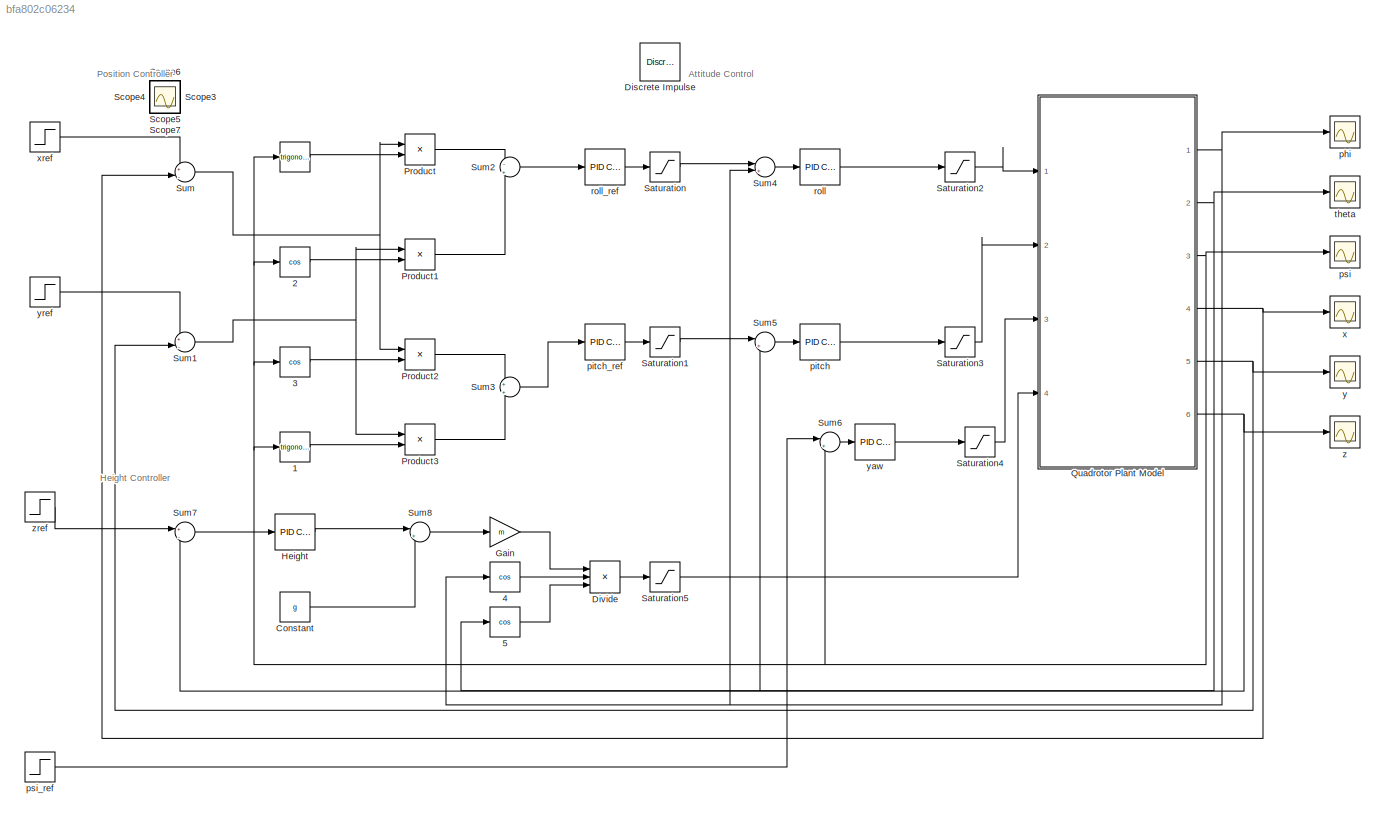
MODEL slx_bfa802c06234
KIND model
CONFIG AbsTol = auto
CONFIG EnableMultiTasking = off
CONFIG FixedStep = auto
CONFIG MaxStep = auto
CONFIG MinStep = auto
CONFIG RelTol = 1e-3
CONFIG SampleTimeConstraint = Unconstrained
CONFIG Solver = VariableStepAuto
CONFIG SolverName = VariableStepAuto
CONFIG StartTime = 0.0
CONFIG StopTime = 20
WORKSPACE source: mxarray member
WORKSPACE g = 1
BLOCK [Trigonometry]  
  NameLocation = right
  Ports = [1, 1]
BLOCK [Trigonometry]  1
  NameLocation = right
  Ports = [1, 1]
BLOCK [Trigonometry]  2
  NameLocation = right
  Operator = cos
  Ports = [1, 1]
BLOCK [Trigonometry]  3
  NameLocation = right
  Operator = cos
  Ports = [1, 1]
BLOCK [Trigonometry]  4
  NameLocation = right
  Operator = cos
  Ports = [1, 1]
BLOCK [Trigonometry]  5
  NameLocation = right
  Operator = cos
  Ports = [1, 1]
BLOCK [Constant] Constant
  Value = g
BLOCK [Reference] Discrete Impulse  REF=dspsrcs4/Discrete 
Impulse
  Ports = [0, 1]
  SourceBlock = dspsrcs4/Discrete \nImpulse
  SourceProductBaseCode = DS
  SourceType = Discrete Impulse
BLOCK [Product] Divide
  Inputs = *//
  Ports = [3, 1]
BLOCK [Gain] Gain
  Gain = m
BLOCK [Reference] Height  REF=simulink/Continuous/PID Controller
  Ports = [1, 1]
  SourceBlock = simulink/Continuous/PID Controller
  SourceProductBaseCode = SL
  SourceType = PID 1dof
BLOCK [Product] Product
  Ports = [2, 1]
BLOCK [Product] Product1
  Ports = [2, 1]
BLOCK [Product] Product2
  Ports = [2, 1]
BLOCK [Product] Product3
  Ports = [2, 1]
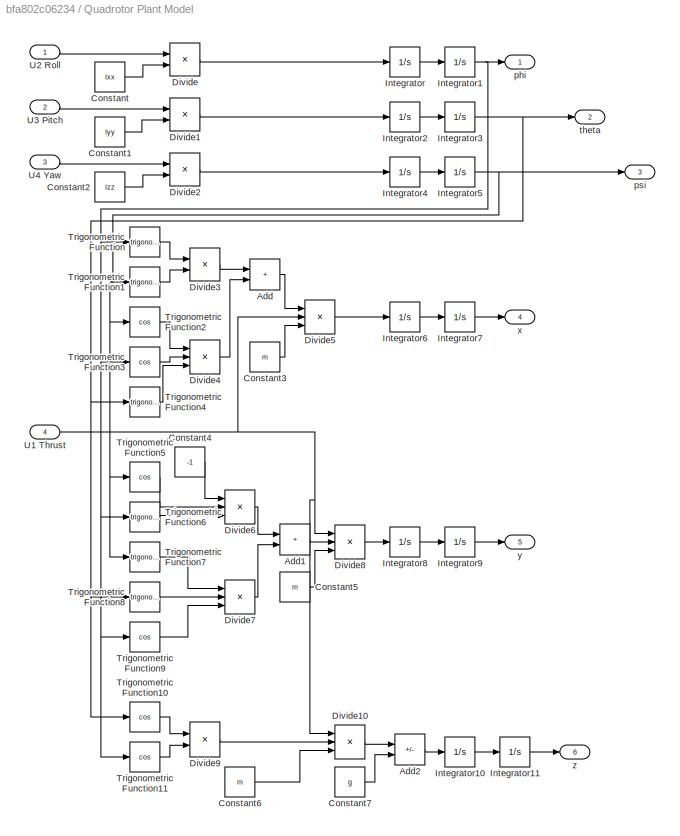
BLOCK [SubSystem] Quadrotor Plant Model
  Ports = [4, 6]
  RequestExecContextInheritance = off
BLOCK [Sum] Quadrotor Plant Model/Add
  IconShape = rectangular
  Ports = [2, 1]
BLOCK [Sum] Quadrotor Plant Model/Add1
  IconShape = rectangular
  Ports = [2, 1]
BLOCK [Sum] Quadrotor Plant Model/Add2
  IconShape = rectangular
  Inputs = +-
  Ports = [2, 1]
BLOCK [Constant] Quadrotor Plant Model/Constant
  Value = Ixx
BLOCK [Constant] Quadrotor Plant Model/Constant1
  Value = Iyy
BLOCK [Constant] Quadrotor Plant Model/Constant2
  Value = Izz
BLOCK [Constant] Quadrotor Plant Model/Constant3
  Value = m
BLOCK [Constant] Quadrotor Plant Model/Constant4
  Value = -1
BLOCK [Constant] Quadrotor Plant Model/Constant5
  Value = m
BLOCK [Constant] Quadrotor Plant Model/Constant6
  Value = m
BLOCK [Constant] Quadrotor Plant Model/Constant7
  Value = g
BLOCK [Product] Quadrotor Plant Model/Divide
  Inputs = */
  Ports = [2, 1]
BLOCK [Product] Quadrotor Plant Model/Divide1
  Inputs = */
  Ports = [2, 1]
BLOCK [Product] Quadrotor Plant Model/Divide10
  Inputs = **/
  Ports = [3, 1]
BLOCK [Product] Quadrotor Plant Model/Divide2
  Inputs = */
  Ports = [2, 1]
BLOCK [Product] Quadrotor Plant Model/Divide3
  Inputs = **
  Ports = [2, 1]
BLOCK [Product] Quadrotor Plant Model/Divide4
  Inputs = ***
  Ports = [3, 1]
BLOCK [Product] Quadrotor Plant Model/Divide5
  Inputs = **/
  Ports = [3, 1]
BLOCK [Product] Quadrotor Plant Model/Divide6
  Inputs = ***
  Ports = [3, 1]
BLOCK [Product] Quadrotor Plant Model/Divide7
  Inputs = ***
  Ports = [3, 1]
BLOCK [Product] Quadrotor Plant Model/Divide8
  Inputs = **/
  Ports = [3, 1]
BLOCK [Product] Quadrotor Plant Model/Divide9
  Inputs = **
  Ports = [2, 1]
BLOCK [Integrator] Quadrotor Plant Model/Integrator
  Ports = [1, 1]
BLOCK [Integrator] Quadrotor Plant Model/Integrator1
  Ports = [1, 1]
BLOCK [Integrator] Quadrotor Plant Model/Integrator10
  Ports = [1, 1]
BLOCK [Integrator] Quadrotor Plant Model/Integrator11
  Ports = [1, 1]
BLOCK [Integrator] Quadrotor Plant Model/Integrator2
  Ports = [1, 1]
BLOCK [Integrator] Quadrotor Plant Model/Integrator3
  Ports = [1, 1]
BLOCK [Integrator] Quadrotor Plant Model/Integrator4
  Ports = [1, 1]
BLOCK [Integrator] Quadrotor Plant Model/Integrator5
  Ports = [1, 1]
BLOCK [Integrator] Quadrotor Plant Model/Integrator6
  Ports = [1, 1]
BLOCK [Integrator] Quadrotor Plant Model/Integrator7
  Ports = [1, 1]
BLOCK [Integrator] Quadrotor Plant Model/Integrator8
  Ports = [1, 1]
BLOCK [Integrator] Quadrotor Plant Model/Integrator9
  Ports = [1, 1]
BLOCK [Trigonometry] Quadrotor Plant Model/Trigonometric Function
  Ports = [1, 1]
BLOCK [Trigonometry] Quadrotor Plant Model/Trigonometric Function1
  Ports = [1, 1]
BLOCK [Trigonometry] Quadrotor Plant Model/Trigonometric Function10
  Operator = cos
  Ports = [1, 1]
BLOCK [Trigonometry] Quadrotor Plant Model/Trigonometric Function11
  Operator = cos
  Ports = [1, 1]
BLOCK [Trigonometry] Quadrotor Plant Model/Trigonometric Function2
  Operator = cos
  Ports = [1, 1]
BLOCK [Trigonometry] Quadrotor Plant Model/Trigonometric Function3
  Operator = cos
  Ports = [1, 1]
BLOCK [Trigonometry] Quadrotor Plant Model/Trigonometric Function4
  Ports = [1, 1]
BLOCK [Trigonometry] Quadrotor Plant Model/Trigonometric Function5
  Operator = cos
  Ports = [1, 1]
BLOCK [Trigonometry] Quadrotor Plant Model/Trigonometric Function6
  Ports = [1, 1]
BLOCK [Trigonometry] Quadrotor Plant Model/Trigonometric Function7
  Ports = [1, 1]
BLOCK [Trigonometry] Quadrotor Plant Model/Trigonometric Function8
  Ports = [1, 1]
BLOCK [Trigonometry] Quadrotor Plant Model/Trigonometric Function9
  Operator = cos
  Ports = [1, 1]
BLOCK [Inport] Quadrotor Plant Model/U1 Thrust
  Port = 4
BLOCK [Inport] Quadrotor Plant Model/U2 Roll
  IconDisplay = Signal name
BLOCK [Inport] Quadrotor Plant Model/U3 Pitch
  Port = 2
BLOCK [Inport] Quadrotor Plant Model/U4 Yaw
  Port = 3
BLOCK [Outport] Quadrotor Plant Model/phi
BLOCK [Outport] Quadrotor Plant Model/psi
  Port = 3
BLOCK [Outport] Quadrotor Plant Model/theta
  Port = 2
BLOCK [Outport] Quadrotor Plant Model/x
  Port = 4
BLOCK [Outport] Quadrotor Plant Model/y
  Port = 5
BLOCK [Outport] Quadrotor Plant Model/z
  Port = 6
BLOCK [Saturate] Saturation
  LowerLimit = -5000
  UpperLimit = 5000
BLOCK [Saturate] Saturation1
  LowerLimit = -5000
  UpperLimit = 5000
BLOCK [Saturate] Saturation2
  LowerLimit = -1000
  UpperLimit = 1000
BLOCK [Saturate] Saturation3
  LowerLimit = -5000
  UpperLimit = 5000
BLOCK [Saturate] Saturation4
  LowerLimit = -5000
  UpperLimit = 5000
BLOCK [Saturate] Saturation5
  LowerLimit = -5000
  UpperLimit = 5000
BLOCK [Scope] Scope
  Floating = off
  IOType = viewer
  NumInputPorts = 1
  Ports = []
  ScopeSpecificationString = Simulink.scopes.TimeScopeBlockCfg('CurrentConfiguration', extmgr.ConfigurationSet(extmgr.Configuration('Core','General UI',true),extmgr.Configuration('Core','Source UI',true),extmgr.Configuration('Sources','WiredSimulink',true,'DataLoggingVariableName','ScopeData6'),extmgr.Configuration('Visuals','Time Domain',true,'SerializedDisplays',{struct('MinYLimReal','-1.25','MaxYLimReal','11.25','YLabelRea...<+1375ch>
BLOCK [Scope] Scope1
  Floating = off
  IOType = viewer
  NumInputPorts = 1
  Ports = []
  ScopeSpecificationString = Simulink.scopes.TimeScopeBlockCfg('CurrentConfiguration', extmgr.ConfigurationSet(extmgr.Configuration('Core','General UI',true),extmgr.Configuration('Core','Source UI',true),extmgr.Configuration('Sources','WiredSimulink',true,'DataLoggingVariableName','ScopeData7'),extmgr.Configuration('Visuals','Time Domain',true,'SerializedDisplays',{struct('MinYLimReal','-5.85625','MaxYLimReal','56.20625','YLa...<+1404ch>
BLOCK [Scope] Scope2
  Floating = off
  IOType = viewer
  NumInputPorts = 1
  Ports = []
  ScopeSpecificationString = Simulink.scopes.TimeScopeBlockCfg('CurrentConfiguration', extmgr.ConfigurationSet(extmgr.Configuration('Core','General UI',true),extmgr.Configuration('Core','Source UI',true),extmgr.Configuration('Sources','WiredSimulink',true,'DataLoggingVariableName','ScopeData8'),extmgr.Configuration('Visuals','Time Domain',true,'SerializedDisplays',{struct('MinYLimReal','-1.00000','MaxYLimReal','1.00000','YLab...<+1363ch>
BLOCK [Scope] Scope3
  Floating = off
  IOType = viewer
  NumInputPorts = 1
  Ports = []
  ScopeSpecificationString = Simulink.scopes.TimeScopeBlockCfg('CurrentConfiguration', extmgr.ConfigurationSet(extmgr.Configuration('Core','General UI',true),extmgr.Configuration('Core','Source UI',true),extmgr.Configuration('Sources','WiredSimulink',true,'DataLoggingVariableName','ScopeData9'),extmgr.Configuration('Visuals','Time Domain',true,'SerializedDisplays',{struct('MinYLimReal','-1.25','MaxYLimReal','11.25','YLabelRea...<+1349ch>
BLOCK [Scope] Scope4
  Floating = off
  IOType = viewer
  NumInputPorts = 1
  Ports = []
  ScopeSpecificationString = Simulink.scopes.TimeScopeBlockCfg('CurrentConfiguration', extmgr.ConfigurationSet(extmgr.Configuration('Core','General UI',true),extmgr.Configuration('Core','Source UI',true),extmgr.Configuration('Sources','WiredSimulink',true,'DataLoggingVariableName','ScopeData10'),extmgr.Configuration('Visuals','Time Domain',true,'SerializedDisplays',{struct('MinYLimReal','-2.65716','MaxYLimReal','11.40635','YL...<+1368ch>
BLOCK [Scope] Scope5
  Floating = off
  IOType = viewer
  NumInputPorts = 1
  Ports = []
  ScopeSpecificationString = Simulink.scopes.TimeScopeBlockCfg('CurrentConfiguration', extmgr.ConfigurationSet(extmgr.Configuration('Core','General UI',true),extmgr.Configuration('Core','Source UI',true),extmgr.Configuration('Sources','WiredSimulink',true,'DataLoggingVariableName','ScopeData11'),extmgr.Configuration('Visuals','Time Domain',true,'SerializedDisplays',{struct('MinYLimReal','-141.87842','MaxYLimReal','1273.52337'...<+1414ch>
BLOCK [Scope] Scope6
  Floating = off
  IOType = viewer
  NumInputPorts = 1
  Ports = []
  ScopeSpecificationString = Simulink.scopes.TimeScopeBlockCfg('CurrentConfiguration', extmgr.ConfigurationSet(extmgr.Configuration('Core','General UI',true),extmgr.Configuration('Core','Source UI',true),extmgr.Configuration('Sources','WiredSimulink',true,'DataLoggingVariableName','ScopeData12'),extmgr.Configuration('Visuals','Time Domain',true,'SerializedDisplays',{struct('MinYLimReal','-48262567384743.96094','MaxYLimReal','...<+1498ch>
BLOCK [Scope] Scope7
  Floating = off
  IOType = viewer
  NumInputPorts = 1
  Ports = []
  ScopeSpecificationString = Simulink.scopes.TimeScopeBlockCfg('CurrentConfiguration', extmgr.ConfigurationSet(extmgr.Configuration('Core','General UI',true),extmgr.Configuration('Core','Source UI',true),extmgr.Configuration('Sources','WiredSimulink',true,'DataLoggingVariableName','ScopeData13'),extmgr.Configuration('Visuals','Time Domain',true,'SerializedDisplays',{struct('MinYLimReal','-1.00000','MaxYLimReal','1.00000','YLa...<+1398ch>
BLOCK [Sum] Sum
  Inputs = +|-
  Ports = [2, 1]
BLOCK [Sum] Sum1
  Inputs = +|-
  Ports = [2, 1]
BLOCK [Sum] Sum2
  Inputs = -|+
  Ports = [2, 1]
BLOCK [Sum] Sum3
  Inputs = +|+
  Ports = [2, 1]
BLOCK [Sum] Sum4
  Inputs = |+-
  Ports = [2, 1]
BLOCK [Sum] Sum5
  Inputs = |+-
  Ports = [2, 1]
BLOCK [Sum] Sum6
  Inputs = |+-
  Ports = [2, 1]
BLOCK [Sum] Sum7
  Inputs = +|-
  Ports = [2, 1]
BLOCK [Sum] Sum8
  Inputs = |++
  Ports = [2, 1]
BLOCK [Scope] phi
  Floating = off
  NumInputPorts = 1
  Ports = [1]
  ScopeSpecificationString = Simulink.scopes.TimeScopeBlockCfg('CurrentConfiguration', extmgr.ConfigurationSet(extmgr.Configuration('Core','General UI',true),extmgr.Configuration('Core','Source UI',true),extmgr.Configuration('Sources','WiredSimulink',true),extmgr.Configuration('Visuals','Time Domain',true,'SerializedDisplays',{struct('MinYLimReal','-16858697.12971','MaxYLimReal','55894031.1041','YLabelReal','','MinYLimMag',' ...<+1422ch>
BLOCK [Reference] pitch  REF=simulink/Continuous/PID Controller
  Ports = [1, 1]
  SourceBlock = simulink/Continuous/PID Controller
  SourceProductBaseCode = SL
  SourceType = PID 1dof
BLOCK [Reference] pitch_ref  REF=simulink/Continuous/PID Controller
  Ports = [1, 1]
  SourceBlock = simulink/Continuous/PID Controller
  SourceProductBaseCode = SL
  SourceType = PID 1dof
BLOCK [Scope] psi
  Floating = off
  NumInputPorts = 1
  Ports = [1]
  ScopeSpecificationString = Simulink.scopes.TimeScopeBlockCfg('CurrentConfiguration', extmgr.ConfigurationSet(extmgr.Configuration('Core','General UI',true),extmgr.Configuration('Core','Source UI',true),extmgr.Configuration('Sources','WiredSimulink',true,'DataLoggingVariableName','ScopeData2'),extmgr.Configuration('Visuals','Time Domain',true),extmgr.Configuration('Tools','Plot Navigation',true),extmgr.Configuration('Tools',...<+40ch>
BLOCK [Step] psi_ref
  After = pi/2
  SampleTime = 0
  Time = 0
BLOCK [Reference] roll  REF=simulink/Continuous/PID Controller
  Ports = [1, 1]
  SourceBlock = simulink/Continuous/PID Controller
  SourceProductBaseCode = SL
  SourceType = PID 1dof
BLOCK [Reference] roll_ref  REF=simulink/Continuous/PID Controller
  Ports = [1, 1]
  SourceBlock = simulink/Continuous/PID Controller
  SourceProductBaseCode = SL
  SourceType = PID 1dof
BLOCK [Scope] theta
  Floating = off
  NumInputPorts = 1
  Ports = [1]
  ScopeSpecificationString = Simulink.scopes.TimeScopeBlockCfg('CurrentConfiguration', extmgr.ConfigurationSet(extmgr.Configuration('Core','General UI',true),extmgr.Configuration('Core','Source UI',true),extmgr.Configuration('Sources','WiredSimulink',true,'DataLoggingVariableName','ScopeData1'),extmgr.Configuration('Visuals','Time Domain',true),extmgr.Configuration('Tools','Plot Navigation',true),extmgr.Configuration('Tools',...<+40ch>
BLOCK [Scope] x
  Floating = off
  NumInputPorts = 1
  Ports = [1]
  ScopeSpecificationString = Simulink.scopes.TimeScopeBlockCfg('CurrentConfiguration', extmgr.ConfigurationSet(extmgr.Configuration('Core','General UI',true),extmgr.Configuration('Core','Source UI',true),extmgr.Configuration('Sources','WiredSimulink',true,'DataLoggingVariableName','ScopeData3'),extmgr.Configuration('Visuals','Time Domain',true,'SerializedDisplays',{struct('MinYLimReal','-1.00000','MaxYLimReal','1.00000','YLab...<+1412ch>
BLOCK [Step] xref
  After = 0
  SampleTime = 0
BLOCK [Scope] y
  Floating = off
  NumInputPorts = 1
  Ports = [1]
  ScopeSpecificationString = Simulink.scopes.TimeScopeBlockCfg('CurrentConfiguration', extmgr.ConfigurationSet(extmgr.Configuration('Core','General UI',true),extmgr.Configuration('Core','Source UI',true),extmgr.Configuration('Sources','WiredSimulink',true,'DataLoggingVariableName','ScopeData4'),extmgr.Configuration('Visuals','Time Domain',true,'SerializedDisplays',{struct('MinYLimReal','-354.77321','MaxYLimReal','56.10008','Y...<+1394ch>
BLOCK [Reference] yaw  REF=simulink/Continuous/PID Controller
  Ports = [1, 1]
  SourceBlock = simulink/Continuous/PID Controller
  SourceProductBaseCode = SL
  SourceType = PID 1dof
BLOCK [Step] yref
  After = 5
  SampleTime = 0
  Time = 5
BLOCK [Scope] z
  Floating = off
  NumInputPorts = 1
  Ports = [1]
  ScopeSpecificationString = Simulink.scopes.TimeScopeBlockCfg('CurrentConfiguration', extmgr.ConfigurationSet(extmgr.Configuration('Core','General UI',true),extmgr.Configuration('Core','Source UI',true),extmgr.Configuration('Sources','WiredSimulink',true,'DataLoggingVariableName','ScopeData5'),extmgr.Configuration('Visuals','Time Domain',true,'SerializedDisplays',{struct('MinYLimReal','-1.40635','MaxYLimReal','12.65716','YLa...<+1416ch>
BLOCK [Step] zref
  After = 10
  SampleTime = 0
  Time = 0
ANNOTATION (root): Attitude Control
ANNOTATION (root): Height Controller
ANNOTATION (root): Position Controller
LINE  1:1 -> Product3:2
LINE  2:1 -> Product1:2
LINE  3:1 -> Product2:2
LINE  4:1 -> Divide:2
LINE  5:1 -> Divide:3
LINE  :1 -> Product:2
LINE Constant:1 -> Sum8:2
LINE Divide:1 -> Saturation5:1
LINE Gain:1 -> Divide:1
LINE Height:1 -> Sum8:1
LINE Product1:1 -> Sum2:2
LINE Product2:1 -> Sum3:1
LINE Product3:1 -> Sum3:2
LINE Product:1 -> Sum2:1
LINE Quadrotor Plant Model/Add1:1 -> Quadrotor Plant Model/Divide8:2
LINE Quadrotor Plant Model/Add2:1 -> Quadrotor Plant Model/Integrator10:1
LINE Quadrotor Plant Model/Add:1 -> Quadrotor Plant Model/Divide5:1
LINE Quadrotor Plant Model/Constant1:1 -> Quadrotor Plant Model/Divide1:2
LINE Quadrotor Plant Model/Constant2:1 -> Quadrotor Plant Model/Divide2:2
LINE Quadrotor Plant Model/Constant3:1 -> Quadrotor Plant Model/Divide5:3
LINE Quadrotor Plant Model/Constant4:1 -> Quadrotor Plant Model/Divide6:1
LINE Quadrotor Plant Model/Constant5:1 -> Quadrotor Plant Model/Divide8:3
LINE Quadrotor Plant Model/Constant6:1 -> Quadrotor Plant Model/Divide10:3
LINE Quadrotor Plant Model/Constant7:1 -> Quadrotor Plant Model/Add2:2
LINE Quadrotor Plant Model/Constant:1 -> Quadrotor Plant Model/Divide:2
LINE Quadrotor Plant Model/Divide10:1 -> Quadrotor Plant Model/Add2:1
LINE Quadrotor Plant Model/Divide1:1 -> Quadrotor Plant Model/Integrator2:1
LINE Quadrotor Plant Model/Divide2:1 -> Quadrotor Plant Model/Integrator4:1
LINE Quadrotor Plant Model/Divide3:1 -> Quadrotor Plant Model/Add:1
LINE Quadrotor Plant Model/Divide4:1 -> Quadrotor Plant Model/Add:2
LINE Quadrotor Plant Model/Divide5:1 -> Quadrotor Plant Model/Integrator6:1
LINE Quadrotor Plant Model/Divide6:1 -> Quadrotor Plant Model/Add1:1
LINE Quadrotor Plant Model/Divide7:1 -> Quadrotor Plant Model/Add1:2
LINE Quadrotor Plant Model/Divide8:1 -> Quadrotor Plant Model/Integrator8:1
LINE Quadrotor Plant Model/Divide9:1 -> Quadrotor Plant Model/Divide10:2
LINE Quadrotor Plant Model/Divide:1 -> Quadrotor Plant Model/Integrator:1
LINE Quadrotor Plant Model/Integrator10:1 -> Quadrotor Plant Model/Integrator11:1
LINE Quadrotor Plant Model/Integrator11:1 -> Quadrotor Plant Model/z:1
NET Quadrotor Plant Model/Integrator1:1 -> Quadrotor Plant Model/Trigonometric Function11:1, Quadrotor Plant Model/Trigonometric Function3:1, Quadrotor Plant Model/Trigonometric Function6:1, Quadrotor Plant Model/Trigonometric Function9:1, Quadrotor Plant Model/Trigonometric Function:1, Quadrotor Plant Model/phi:1
LINE Quadrotor Plant Model/Integrator2:1 -> Quadrotor Plant Model/Integrator3:1
NET Quadrotor Plant Model/Integrator3:1 -> Quadrotor Plant Model/Trigonometric Function10:1, Quadrotor Plant Model/Trigonometric Function4:1, Quadrotor Plant Model/Trigonometric Function8:1, Quadrotor Plant Model/theta:1
LINE Quadrotor Plant Model/Integrator4:1 -> Quadrotor Plant Model/Integrator5:1
NET Quadrotor Plant Model/Integrator5:1 -> Quadrotor Plant Model/Trigonometric Function1:1, Quadrotor Plant Model/Trigonometric Function2:1, Quadrotor Plant Model/Trigonometric Function5:1, Quadrotor Plant Model/Trigonometric Function7:1, Quadrotor Plant Model/psi:1
LINE Quadrotor Plant Model/Integrator6:1 -> Quadrotor Plant Model/Integrator7:1
LINE Quadrotor Plant Model/Integrator7:1 -> Quadrotor Plant Model/x:1
LINE Quadrotor Plant Model/Integrator8:1 -> Quadrotor Plant Model/Integrator9:1
LINE Quadrotor Plant Model/Integrator9:1 -> Quadrotor Plant Model/y:1
LINE Quadrotor Plant Model/Integrator:1 -> Quadrotor Plant Model/Integrator1:1
LINE Quadrotor Plant Model/Trigonometric Function10:1 -> Quadrotor Plant Model/Divide9:1
LINE Quadrotor Plant Model/Trigonometric Function11:1 -> Quadrotor Plant Model/Divide9:2
LINE Quadrotor Plant Model/Trigonometric Function1:1 -> Quadrotor Plant Model/Divide3:2
LINE Quadrotor Plant Model/Trigonometric Function2:1 -> Quadrotor Plant Model/Divide4:1
LINE Quadrotor Plant Model/Trigonometric Function3:1 -> Quadrotor Plant Model/Divide4:2
LINE Quadrotor Plant Model/Trigonometric Function4:1 -> Quadrotor Plant Model/Divide4:3
LINE Quadrotor Plant Model/Trigonometric Function5:1 -> Quadrotor Plant Model/Divide6:2
LINE Quadrotor Plant Model/Trigonometric Function6:1 -> Quadrotor Plant Model/Divide6:3
LINE Quadrotor Plant Model/Trigonometric Function7:1 -> Quadrotor Plant Model/Divide7:1
LINE Quadrotor Plant Model/Trigonometric Function8:1 -> Quadrotor Plant Model/Divide7:2
LINE Quadrotor Plant Model/Trigonometric Function9:1 -> Quadrotor Plant Model/Divide7:3
LINE Quadrotor Plant Model/Trigonometric Function:1 -> Quadrotor Plant Model/Divide3:1
NET Quadrotor Plant Model/U1 Thrust:1 -> Quadrotor Plant Model/Divide10:1, Quadrotor Plant Model/Divide5:2, Quadrotor Plant Model/Divide8:1
LINE Quadrotor Plant Model/U2 Roll:1 -> Quadrotor Plant Model/Divide:1
LINE Quadrotor Plant Model/U3 Pitch:1 -> Quadrotor Plant Model/Divide1:1
LINE Quadrotor Plant Model/U4 Yaw:1 -> Quadrotor Plant Model/Divide2:1
NET Quadrotor Plant Model:1 ->  4:1, Sum4:2, phi:1
NET Quadrotor Plant Model:2 ->  5:1, Sum5:2, theta:1
NET Quadrotor Plant Model:3 ->  1:1,  2:1,  3:1,  :1, Sum6:2, psi:1
NET Quadrotor Plant Model:4 -> Sum:2, x:1
NET Quadrotor Plant Model:5 -> Sum1:2, y:1
NET Quadrotor Plant Model:6 -> Sum7:2, z:1
LINE Saturation1:1 -> Sum5:1
LINE Saturation2:1 -> Quadrotor Plant Model:1
LINE Saturation3:1 -> Quadrotor Plant Model:2
LINE Saturation4:1 -> Quadrotor Plant Model:3
LINE Saturation5:1 -> Quadrotor Plant Model:4
LINE Saturation:1 -> Sum4:1
NET Sum1:1 -> Product1:1, Product3:1
LINE Sum2:1 -> roll_ref:1
LINE Sum3:1 -> pitch_ref:1
LINE Sum4:1 -> roll:1
LINE Sum5:1 -> pitch:1
LINE Sum6:1 -> yaw:1
LINE Sum7:1 -> Height:1
LINE Sum8:1 -> Gain:1
NET Sum:1 -> Product2:1, Product:1
LINE pitch:1 -> Saturation3:1
LINE pitch_ref:1 -> Saturation1:1
LINE psi_ref:1 -> Sum6:1
LINE roll:1 -> Saturation2:1
LINE roll_ref:1 -> Saturation:1
LINE xref:1 -> Sum:1
LINE yaw:1 -> Saturation4:1
LINE yref:1 -> Sum1:1
LINE zref:1 -> Sum7:1
note: NET lines group one-source signal fan-out (src -> all destinations, sorted); 1:1 wires keep LINE
